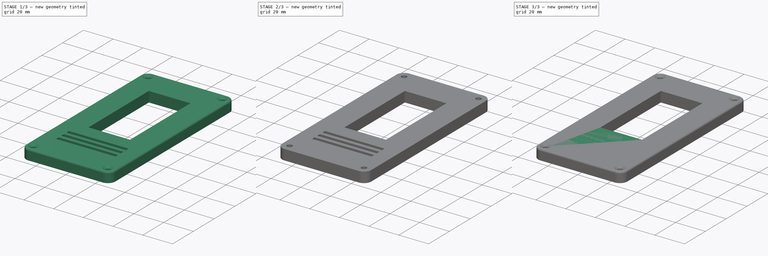
[diagram: build sequence overview — one tinted view per stage of 3, left to right]
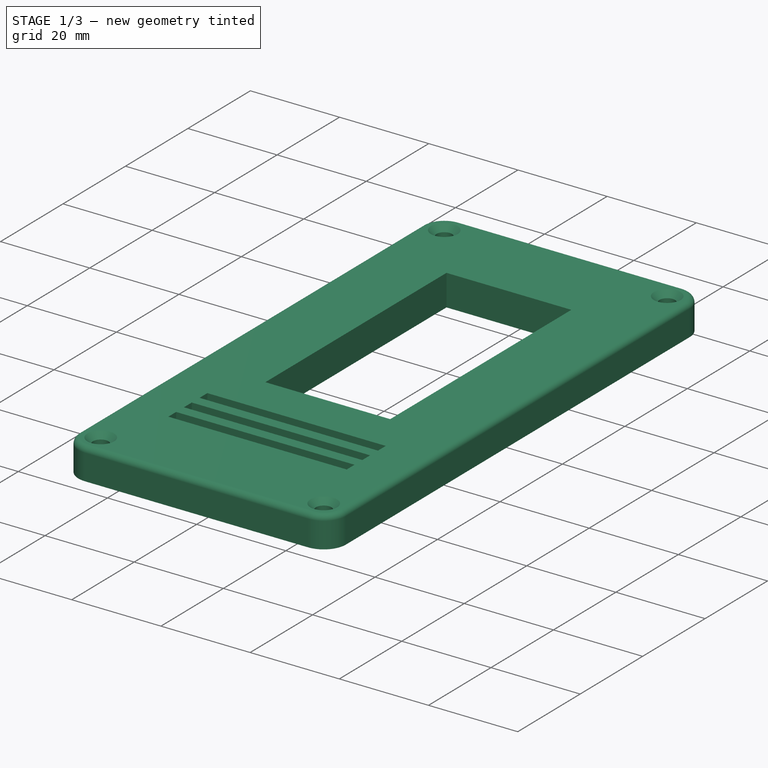
[diagram: stage 1 of 3 — iso view after this stage's code; geometry added in this stage tinted green]
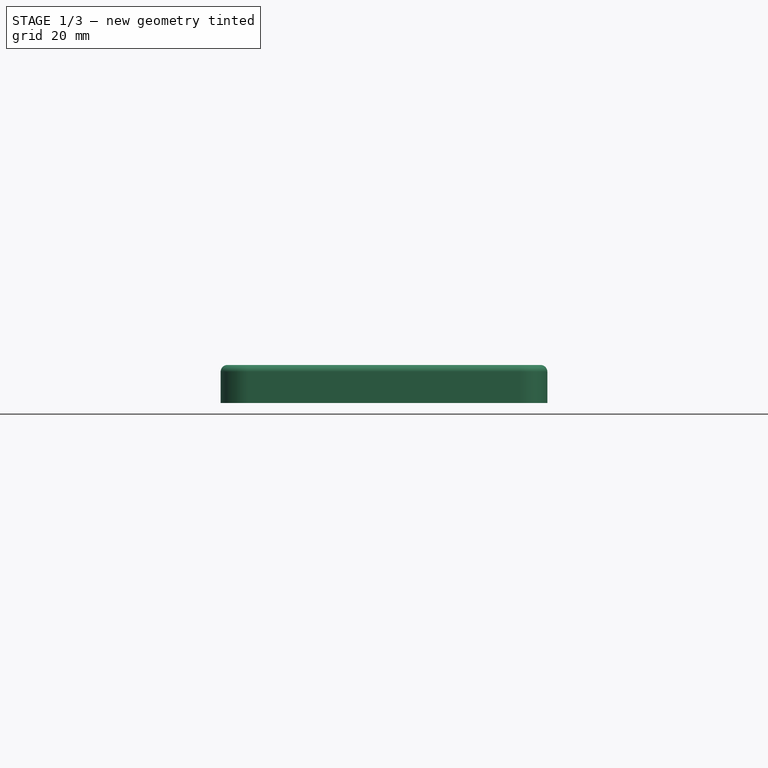
[diagram: stage 1 of 3 — front view after this stage's code; geometry added in this stage tinted green]
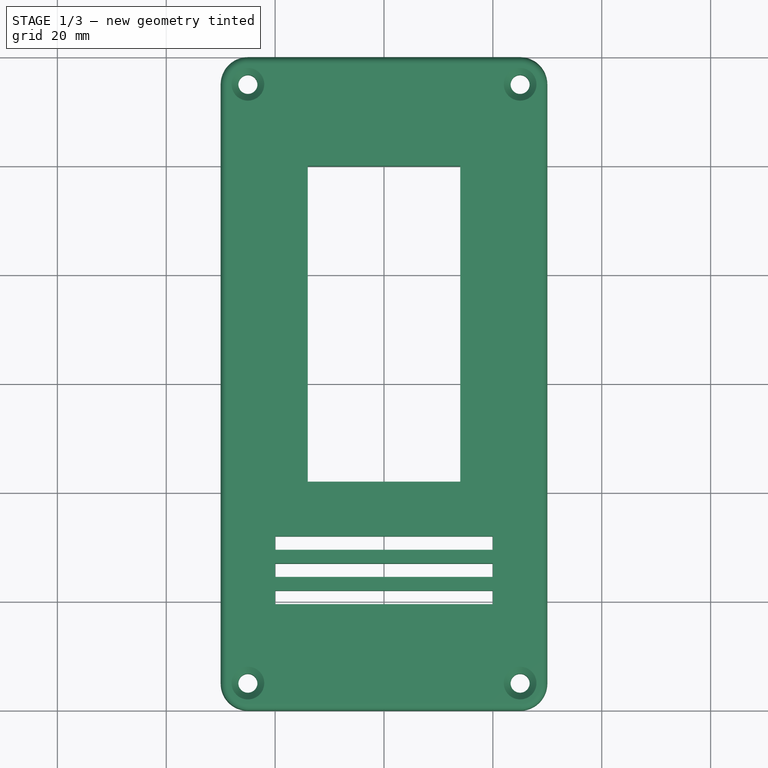
[diagram: stage 1 of 3 — top view after this stage's code; geometry added in this stage tinted green]
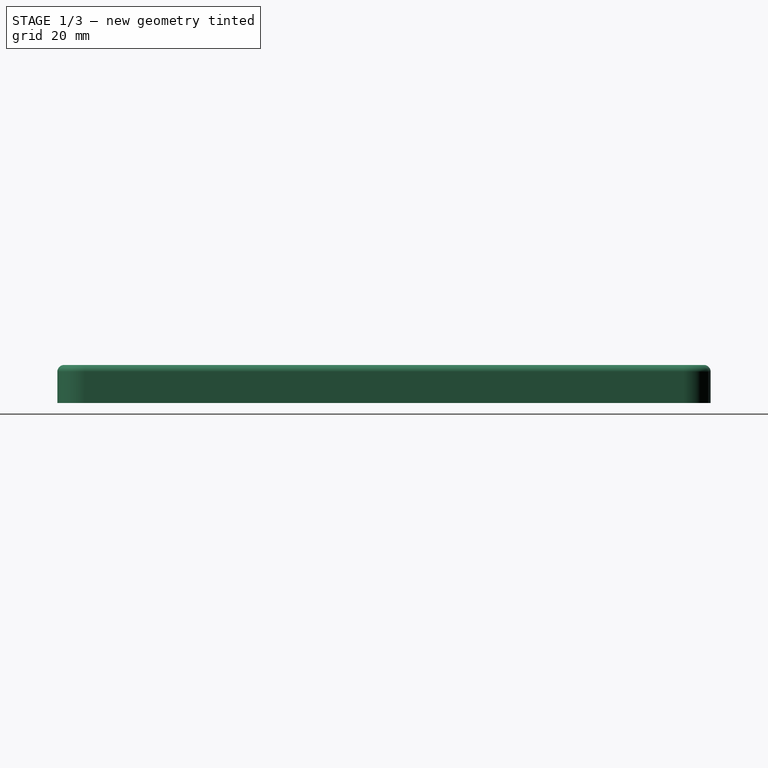
[diagram: stage 1 of 3 — right view after this stage's code; geometry added in this stage tinted green]
FCSTD DOCUMENT  (FreeCAD 0.19R24267 +148 (Git))
Label: powerEntry
License: All rights reserved
LicenseURL: http://en.wikipedia.org/wiki/All_rights_reserved
objects: PartDesign::Chamfer×4, Sketcher::SketchObject×2, PartDesign::Fillet×2, Spreadsheet::Sheet×1, PartDesign::Pad×1, PartDesign::Pocket×1, PartDesign::Body×1
note: 19 computed .brp shape members not serialized (recipe doc carries the construction recipe); baked Part::Feature solids carry a one-line shape summary decoded from their .brp

FEATURE [Sketcher::SketchObject] Sketch
  FullyConstrained = true
  MapMode = 5
  Support = -> [XY_Plane]
  expr: Constraints[78] = Spreadsheet.AirHoleLen
  expr: Constraints[77] = Spreadsheet.AirHoleSpace
  expr: Constraints[72] = Spreadsheet.AirHoleWidth
  expr: Constraints[76] = Spreadsheet.AirHoleLeft
  expr: Constraints[75] = Spreadsheet.AirHoleLen
  expr: Constraints[73] = Spreadsheet.AirHoleLeft
  expr: Constraints[79] = Spreadsheet.AirHoleWidth
  expr: Constraints[54] = Spreadsheet.AirHoleLeft
  expr: Constraints[53] = Spreadsheet.AirHoleWidth
  expr: Constraints[26] = Spreadsheet.SwitchWidth
  expr: Constraints[32] = Spreadsheet.ScrewRadius
  expr: Constraints[74] = Spreadsheet.AirHoleSpace
  expr: Constraints[29] = Spreadsheet.SwitchPosX
  expr: Constraints[28] = -Spreadsheet.SwitchPosY
  expr: Constraints[30] = Spreadsheet.OffsetX
  expr: Constraints[31] = Spreadsheet.OffsetY
  expr: Constraints[27] = Spreadsheet.SwitchHeight
  expr: Constraints[17] = Spreadsheet.BevelRadius
  expr: Constraints[52] = Spreadsheet.AirHoleLen
  expr: Constraints[16] = Spreadsheet.Width
  expr: Constraints[15] = Spreadsheet.Length
  sketch-geometry (28):
    g0: LineSegment StartX=-25 StartY=60 StartZ=0 EndX=25 EndY=60 EndZ=0
    g1: LineSegment StartX=30 StartY=55 StartZ=0 EndX=30 EndY=-55 EndZ=0
    g2: LineSegment StartX=25 StartY=-60 StartZ=0 EndX=-25 EndY=-60 EndZ=0
    g3: LineSegment StartX=-30 StartY=-55 StartZ=0 EndX=-30 EndY=55 EndZ=0
    g4: ArcOfCircle CenterX=-25 CenterY=55 CenterZ=0 NormalX=0 NormalY=0 NormalZ=1 AngleXU=0 Radius=5 StartAngle=1.5708 EndAngle=3.14159
    g5: ArcOfCircle CenterX=25 CenterY=55 CenterZ=0 NormalX=0 NormalY=0 NormalZ=1 AngleXU=0 Radius=5 StartAngle=0 EndAngle=1.5708
    g6: ArcOfCircle CenterX=25 CenterY=-55 CenterZ=0 NormalX=0 NormalY=0 NormalZ=1 AngleXU=0 Radius=5 StartAngle=4.71239 EndAngle=6.28319
    g7: ArcOfCircle CenterX=-25 CenterY=-55 CenterZ=0 NormalX=0 NormalY=0 NormalZ=1 AngleXU=0 Radius=5 StartAngle=3.14159 EndAngle=4.71239
    g8: LineSegment StartX=-14 StartY=40 StartZ=0 EndX=14 EndY=40 EndZ=0
    g9: LineSegment StartX=14 StartY=40 StartZ=0 EndX=14 EndY=-18 EndZ=0
    g10: LineSegment StartX=14 StartY=-18 StartZ=0 EndX=-14 EndY=-18 EndZ=0
    g11: LineSegment StartX=-14 StartY=-18 StartZ=0 EndX=-14 EndY=40 EndZ=0
    g12: Circle CenterX=-25 CenterY=55 CenterZ=0 NormalX=0 NormalY=0 NormalZ=1 AngleXU=0 Radius=1.75
    g13: Circle CenterX=25 CenterY=55 CenterZ=0 NormalX=0 NormalY=0 NormalZ=1 AngleXU=0 Radius=1.75
    g14: Circle CenterX=-25 CenterY=-55 CenterZ=0 NormalX=0 NormalY=0 NormalZ=1 AngleXU=0 Radius=1.75
    g15: Circle CenterX=25 CenterY=-55 CenterZ=0 NormalX=0 NormalY=0 NormalZ=1 AngleXU=0 Radius=1.75
    g16: LineSegment StartX=-20 StartY=-28 StartZ=0 EndX=20 EndY=-28 EndZ=0
    g17: LineSegment StartX=20 StartY=-28 StartZ=0 EndX=20 EndY=-30.5 EndZ=0
    g18: LineSegment StartX=20 StartY=-30.5 StartZ=0 EndX=-20 EndY=-30.5 EndZ=0
    g19: LineSegment StartX=-20 StartY=-30.5 StartZ=0 EndX=-20 EndY=-28 EndZ=0
    g20: LineSegment StartX=-20 StartY=-33 StartZ=0 EndX=20 EndY=-33 EndZ=0
    g21: LineSegment StartX=20 StartY=-33 StartZ=0 EndX=20 EndY=-35.5 EndZ=0
    g22: LineSegment StartX=20 StartY=-35.5 StartZ=0 EndX=-20 EndY=-35.5 EndZ=0
    g23: LineSegment StartX=-20 StartY=-35.5 StartZ=0 EndX=-20 EndY=-33 EndZ=0
    g24: LineSegment StartX=-20 StartY=-38 StartZ=0 EndX=20 EndY=-38 EndZ=0
    g25: LineSegment StartX=20 StartY=-38 StartZ=0 EndX=20 EndY=-40.5 EndZ=0
    g26: LineSegment StartX=20 StartY=-40.5 StartZ=0 EndX=-20 EndY=-40.5 EndZ=0
    g27: LineSegment StartX=-20 StartY=-40.5 StartZ=0 EndX=-20 EndY=-38 EndZ=0
  constraints (80):
    c: Horizontal(g0)
    c: Horizontal(g2)
    c: Vertical(g1)
    c: Vertical(g3)
    c: Tangent(g3,g4) = 1.5708
    c: Tangent(g0,g4) = 1.5708
    c: Tangent(g0,g5) = 1.5708
    c: Tangent(g1,g5) = 1.5708
    c: Tangent(g1,g6) = 1.5708
    c: Tangent(g2,g6) = 1.5708
    c: Tangent(g2,g7) = 1.5708
    c: Tangent(g3,g7) = 1.5708
    c: Equal(g4,g5)
    c: Equal(g5,g6)
    c: Equal(g6,g7)
    c: DistanceY(g2,g0) = 120
    c: DistanceX(g3,g1) = 60
    c: Radius(g4) = 5
    c: Coincident(g8,g9)
    c: Coincident(g9,g10)
    c: Coincident(g10,g11)
    c: Coincident(g11,g8)
    c: Horizontal(g8)
    c: Horizontal(g10)
    c: Vertical(g9)
    c: Vertical(g11)
    c: DistanceX(g8,g8) = 28
    c: DistanceY(g9,g8) = 58
    c: DistanceY(g3,g8) = -15
    c: DistanceX(g3,g8) = 16
    c: DistanceX(g3,g-1) = 30
    c: DistanceY(g2,g-1) = 60
    c: Radius(g12) = 1.75
    c: DistanceX(g4,g12) = 0
    c: DistanceY(g12,g4) = 0
    c: Radius(g13) = 1.75
    c: DistanceX(g13,g5) = 0
    c: DistanceY(g13,g5) = 0
    c: Radius(g14) = 1.75
    c: Radius(g15) = 1.75
    c: DistanceX(g7,g14) = 0
    c: DistanceY(g7,g14) = 0
    c: DistanceX(g15,g6) = 0
    c: DistanceY(g6,g15) = 0
    c: Coincident(g16,g17)
    c: Coincident(g17,g18)
    c: Coincident(g18,g19)
    c: Coincident(g19,g16)
    c: Horizontal(g16)
    c: Horizontal(g18)
    c: Vertical(g17)
    c: Vertical(g19)
    c: DistanceY(g17,g16) = 2.5
    c: DistanceX(g16,g16) = 40
    c: DistanceX(g3,g18) = 10
    c: DistanceY(g16,g10) = 10
    c: Coincident(g20,g21)
    c: Coincident(g21,g22)
    c: Coincident(g22,g23)
    c: Coincident(g23,g20)
    c: Horizontal(g20)
    c: Horizontal(g22)
    c: Vertical(g21)
    c: Vertical(g23)
    c: Coincident(g24,g25)
    c: Coincident(g25,g26)
    c: Coincident(g26,g27)
    c: Coincident(g27,g24)
    c: Horizontal(g24)
    c: Horizontal(g26)
    c: Vertical(g25)
    c: Vertical(g27)
    c: DistanceX(g20,g20) = 40
    c: DistanceX(g3,g20) = 10
    c: DistanceY(g20,g18) = 2.5
    c: DistanceY(g21,g20) = 2.5
    c: DistanceX(g3,g24) = 10
    c: DistanceY(g24,g22) = 2.5
    c: DistanceY(g25,g24) = 2.5
    c: DistanceX(g24,g24) = 40
FEATURE [Spreadsheet::Sheet] Spreadsheet
  cells = A2=Length; B2(Length)=120; A3=Width; B3(Width)=60; A4=SwitchWidth; B4(SwitchWidth)=28; A5=SwitchHeight; B5(SwitchHeight)=58; A6=AirHoleLen; B6(AirHoleLen)=2.5; A7=AirHoleSpace; B7(AirHoleSpace)=2.5; A8=SwitchPosX; B8(SwitchPosX)==(B3 - B4) / 2; C8=Calculated; A9=SwitchPosY; B9(SwitchPosY)=15; A10=BevelRadius; B10(BevelRadius)=5; A11=OffsetX; B11(OffsetX)==B3 / 2; C11=Calculated; A12=OffsetY; B12(OffsetY)==B2 / 2; C12=Calculated; A13=AirHoleWidth; B13(AirHoleWidth)=40; A14=AirHoleLeft; B14(AirHoleLeft)==(B3 - B13) / 2; C14=Calculated; A15=PartThickness; B15(PartThickness)=7; A16=ScrewRadius; B16(ScrewRadius)==3.5 / 2; C16=Calculated; A17=ScrewBevel; B17(ScrewBevel)=1.25; A18=SwitchInset; B18(SwitchInset)=4; A19=SwitchInsetWid; B19(SwitchInsetWid)==B4 + B18 * 2; C19=Calculated; A20=SwitchInsetHei; B20(SwitchInsetHei)==B5 + B18 * 2; C20=Calculated
FEATURE [PartDesign::Pad] Pad
  Direction = (1,1,1)
  Length = 7
  Length2 = 100
  Profile = -> Sketch
  Type = 0
  expr: Length = Spreadsheet.PartThickness
FEATURE [PartDesign::Chamfer] Chamfer003
  Angle = 45
  Base = -> Pad [Edge78,Edge75,Edge81,Edge84]
  BaseFeature = -> Pad
  ChamferType = 0
  FlipDirection = false
  Size = 1.25
  Size2 = 1
  SupportTransform = false
  expr: Size = Spreadsheet.ScrewBevel
FEATURE [PartDesign::Fillet] Fillet001
  Base = -> Chamfer003 [Edge39,Edge38,Edge37,Edge36,Edge35,Edge34,Edge41,Edge40]
  BaseFeature = -> Chamfer003
  Radius = 1.25
  SupportTransform = false
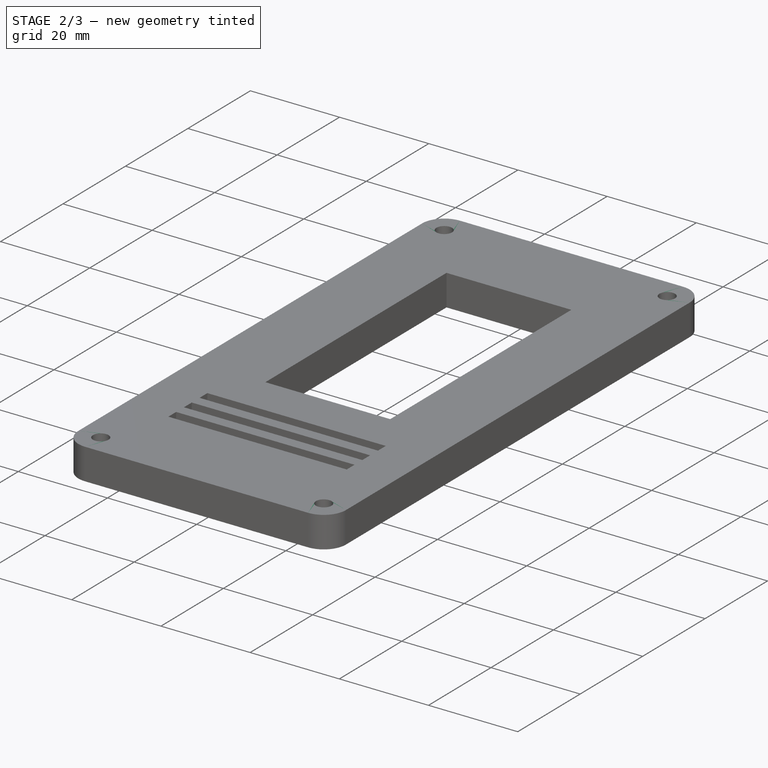
[diagram: stage 2 of 3 — iso view after this stage's code; geometry added in this stage tinted green]
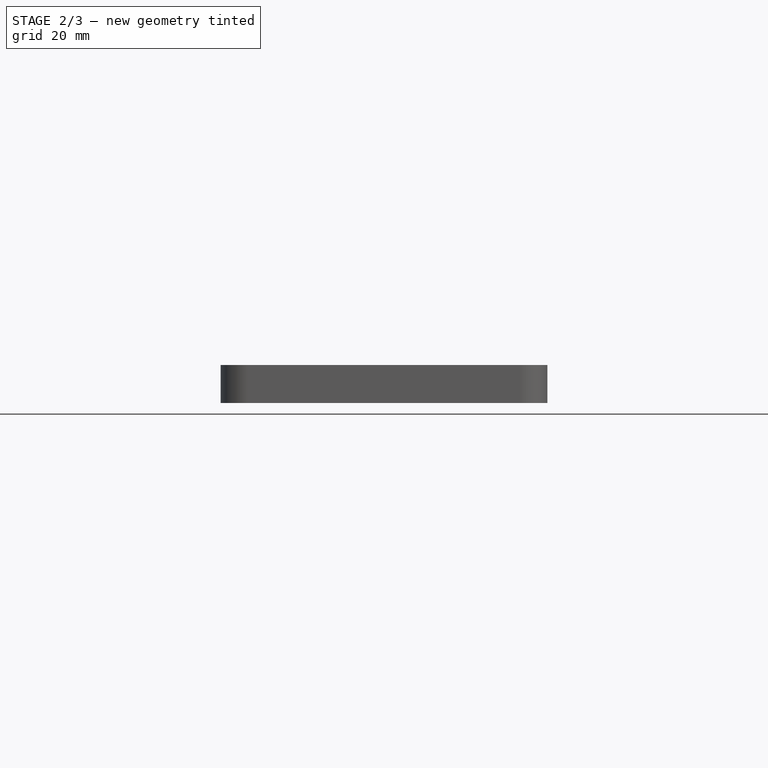
[diagram: stage 2 of 3 — front view after this stage's code; geometry added in this stage tinted green]
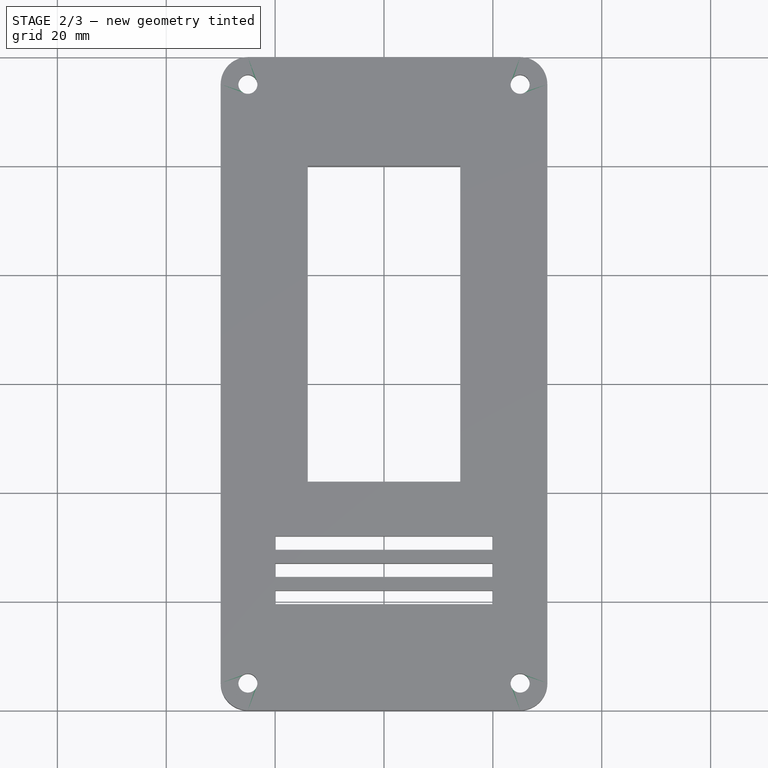
[diagram: stage 2 of 3 — top view after this stage's code; geometry added in this stage tinted green]
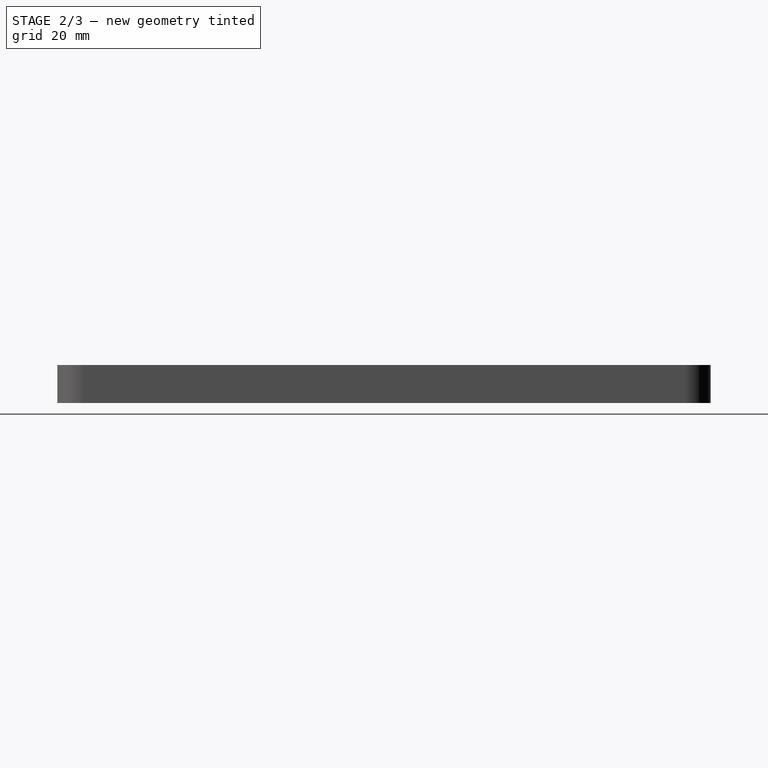
[diagram: stage 2 of 3 — right view after this stage's code; geometry added in this stage tinted green]
FEATURE [PartDesign::Chamfer] Chamfer
  Angle = 45
  Base = -> Pad [Edge48]
  BaseFeature = -> Pad
  ChamferType = 0
  FlipDirection = false
  Size = 1.25
  Size2 = 1
  SupportTransform = false
  expr: Size = Spreadsheet.ScrewBevel
FEATURE [Sketcher::SketchObject] Sketch001
  FullyConstrained = false
  MapMode = 5
  Support = -> [XY_Plane]
  expr: Constraints[9] = Spreadsheet.SwitchInsetHei
  expr: Constraints[8] = Spreadsheet.SwitchInsetWid
  sketch-geometry (4):
    g0: LineSegment StartX=-18.4903 StartY=43.6526 StartZ=0 EndX=17.5097 EndY=43.6526 EndZ=0
    g1: LineSegment StartX=17.5097 StartY=43.6526 StartZ=0 EndX=17.5097 EndY=-22.3474 EndZ=0
    g2: LineSegment StartX=17.5097 StartY=-22.3474 StartZ=0 EndX=-18.4903 EndY=-22.3474 EndZ=0
    g3: LineSegment StartX=-18.4903 StartY=-22.3474 StartZ=0 EndX=-18.4903 EndY=43.6526 EndZ=0
  constraints (10):
    c: Coincident(g0,g1)
    c: Coincident(g1,g2)
    c: Coincident(g2,g3)
    c: Coincident(g3,g0)
    c: Horizontal(g0)
    c: Horizontal(g2)
    c: Vertical(g1)
    c: Vertical(g3)
    c: DistanceX(g0,g0) = 36
    c: DistanceY(g1,g1) = 66
FEATURE [PartDesign::Pocket] Pocket
  BaseFeature = -> Fillet001
  Length = 4
  Length2 = 100
  Profile = -> Sketch001
  Reversed = true
  Type = 0
  expr: Length = Spreadsheet.SwitchInset
FEATURE [PartDesign::Body] Body  label="powerPanel"
  Group = -> [Sketch,Pad,Chamfer,Chamfer001,Chamfer002,Fillet,Chamfer003,Fillet001,Sketch001,Pocket]
  Origin = -> Origin
  Tip = -> Pocket
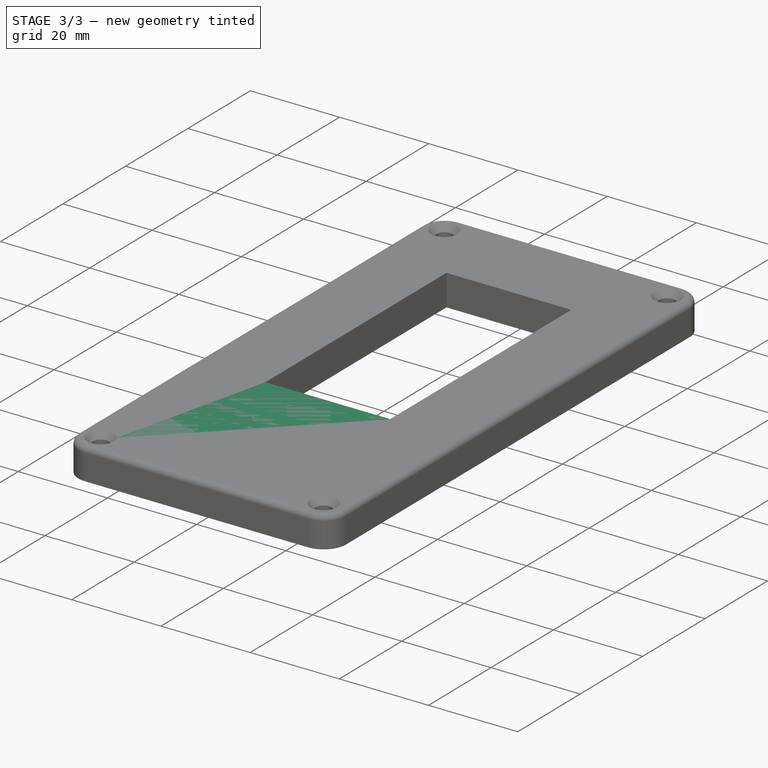
[diagram: stage 3 of 3 — iso view after this stage's code; geometry added in this stage tinted green]
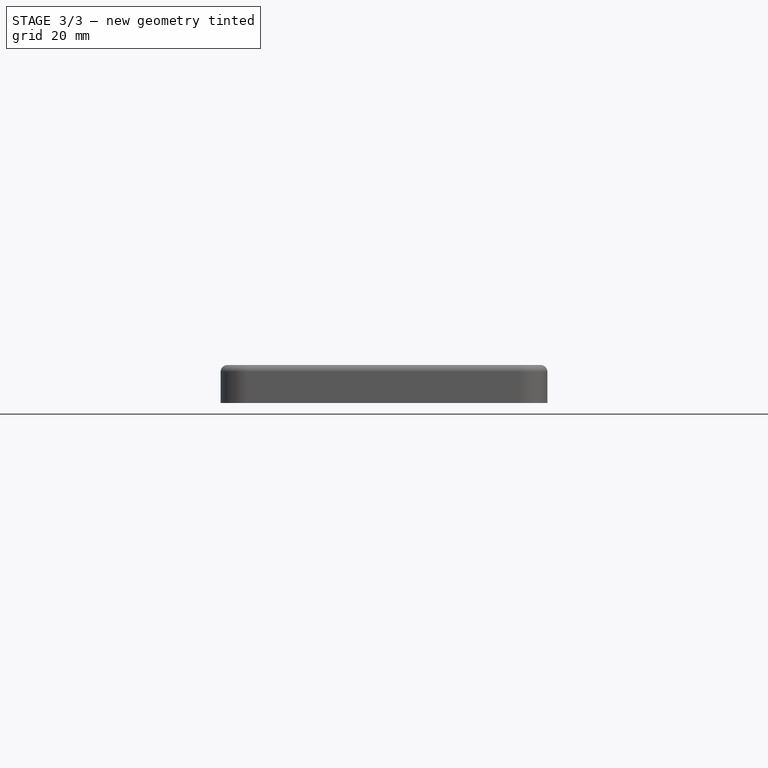
[diagram: stage 3 of 3 — front view after this stage's code; geometry added in this stage tinted green]
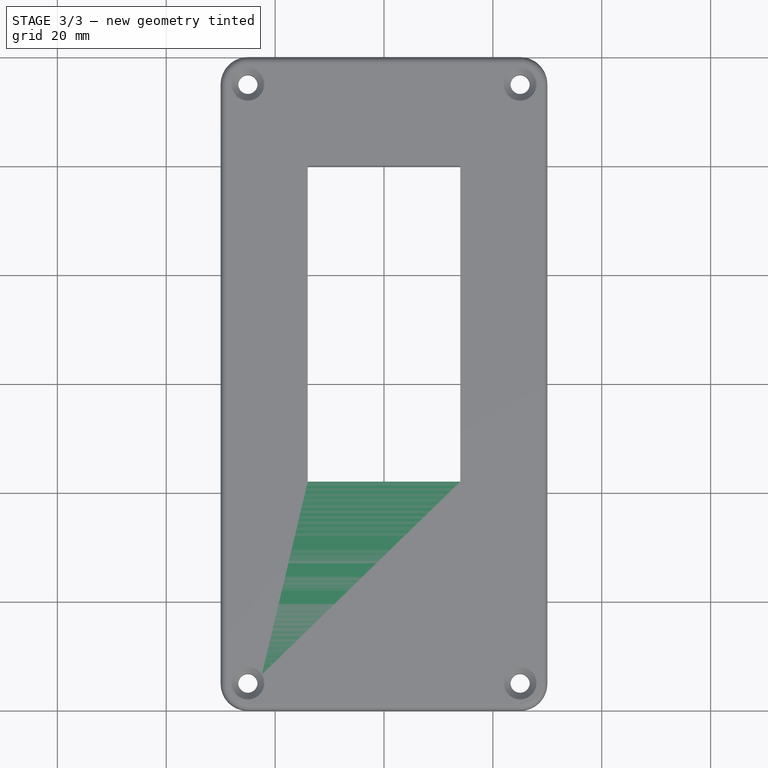
[diagram: stage 3 of 3 — top view after this stage's code; geometry added in this stage tinted green]
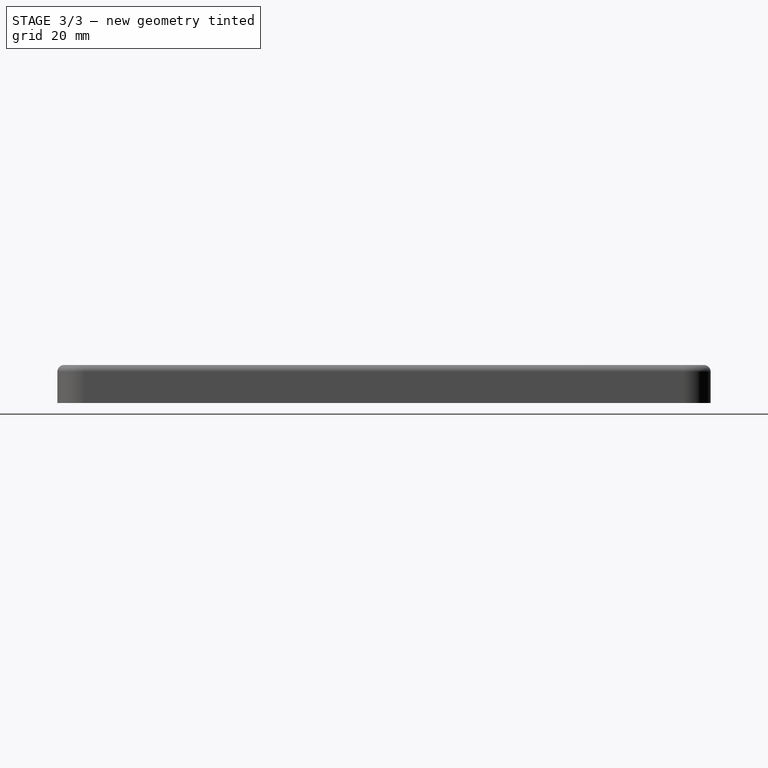
[diagram: stage 3 of 3 — right view after this stage's code; geometry added in this stage tinted green]
FEATURE [PartDesign::Chamfer] Chamfer001
  Angle = 45
  Base = -> Chamfer [Edge35]
  BaseFeature = -> Chamfer
  ChamferType = 0
  FlipDirection = false
  Size = 1.25
  Size2 = 1
  SupportTransform = false
  expr: Size = Spreadsheet.ScrewBevel
FEATURE [PartDesign::Chamfer] Chamfer002
  Angle = 45
  Base = -> Chamfer001 [Edge16,Edge15]
  BaseFeature = -> Chamfer001
  ChamferType = 0
  FlipDirection = false
  Size = 1.25
  Size2 = 1
  SupportTransform = false
  expr: Size = Spreadsheet.ScrewBevel
FEATURE [PartDesign::Fillet] Fillet
  Base = -> Chamfer002 [Edge11,Edge4,Edge5,Edge6,Edge7,Edge8,Edge9,Edge10]
  BaseFeature = -> Chamfer002
  Radius = 1.5
  SupportTransform = false
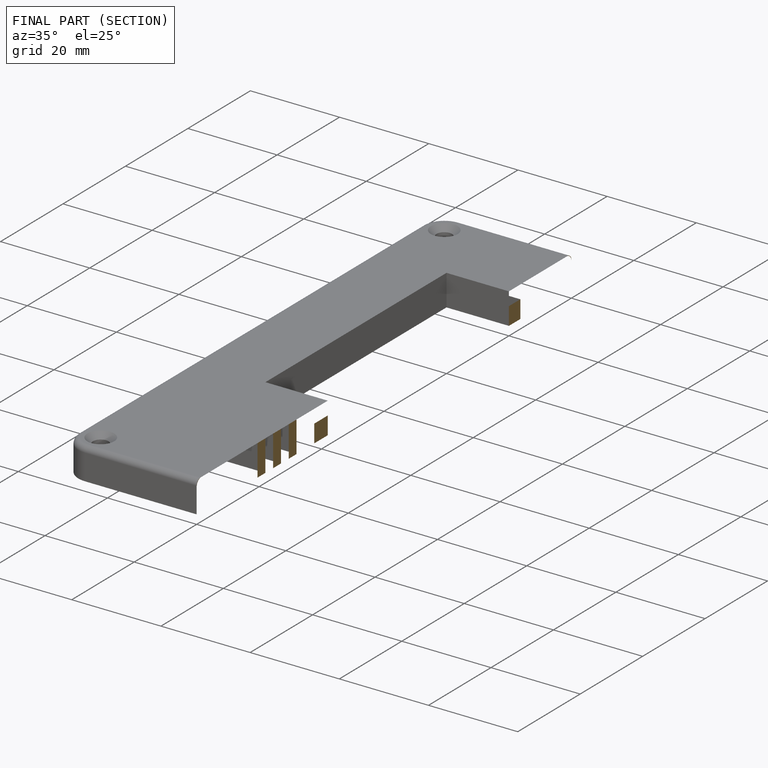
[diagram: finished part — half-section view (interior)]
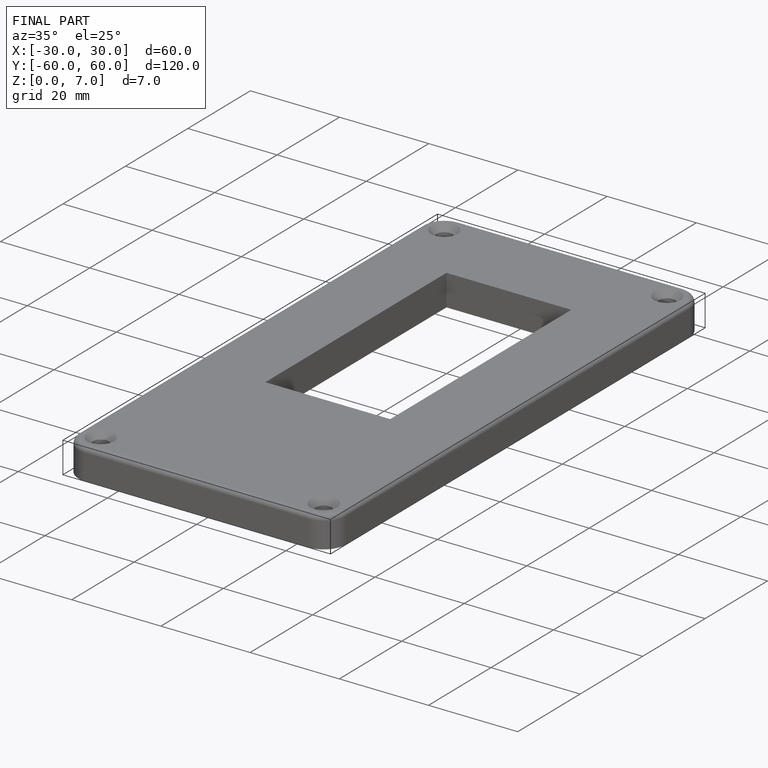
[diagram: finished part — iso view with bounding-box wireframe]
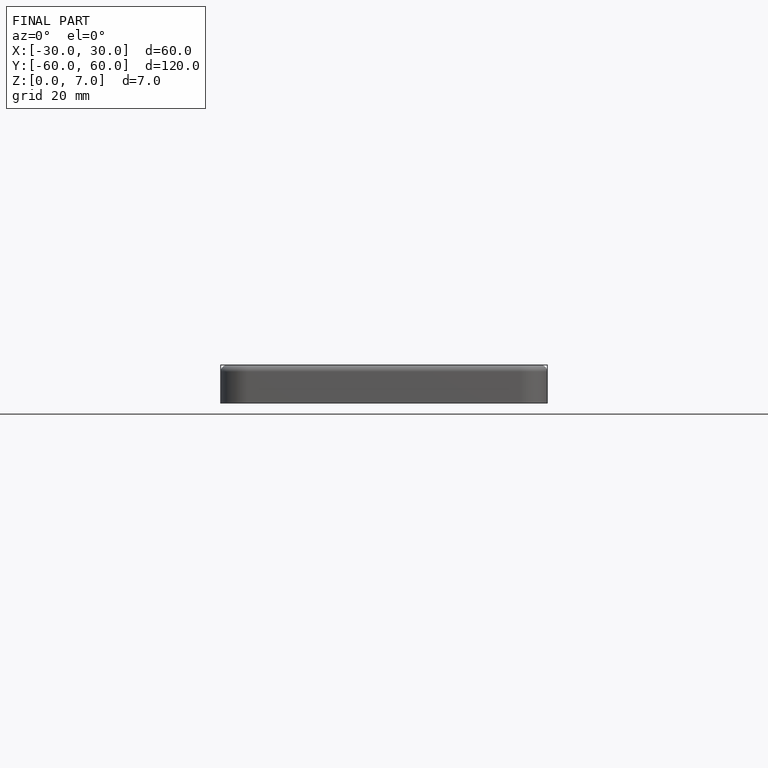
[diagram: finished part — front view with bounding-box wireframe]
